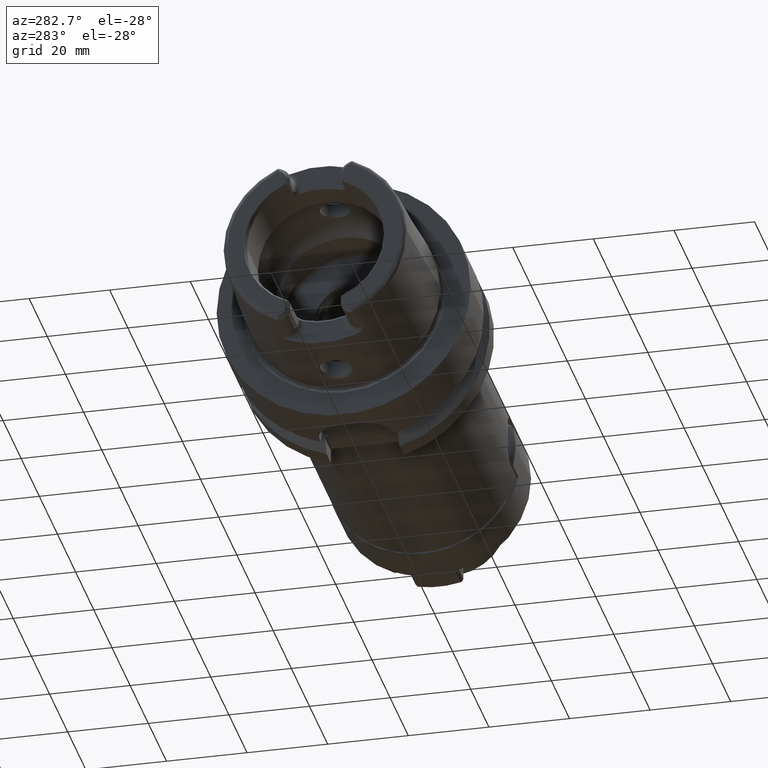
[diagram: clean part render]
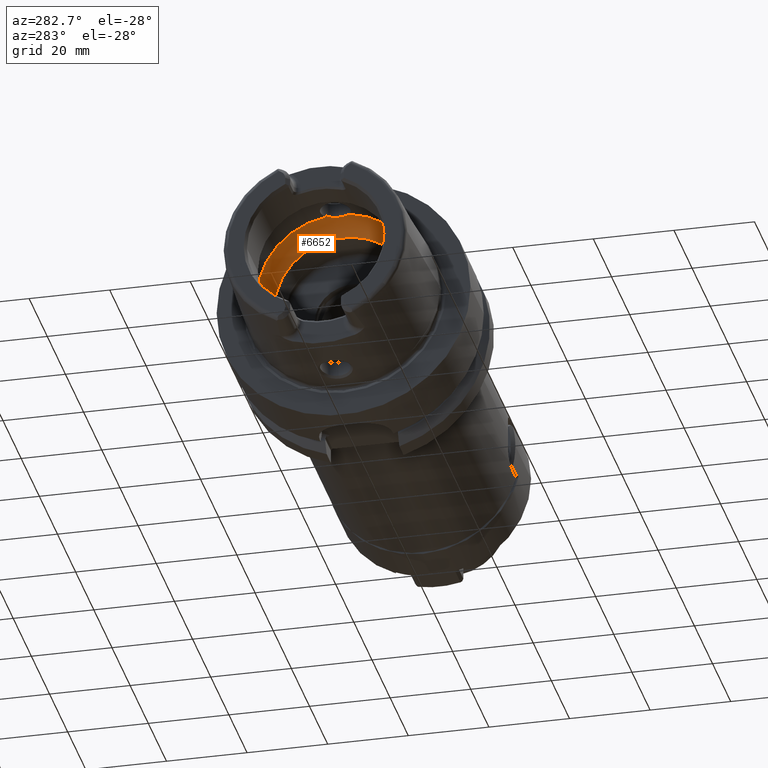
[diagram: same view with one face highlighted and labeled with its STEP entity id]
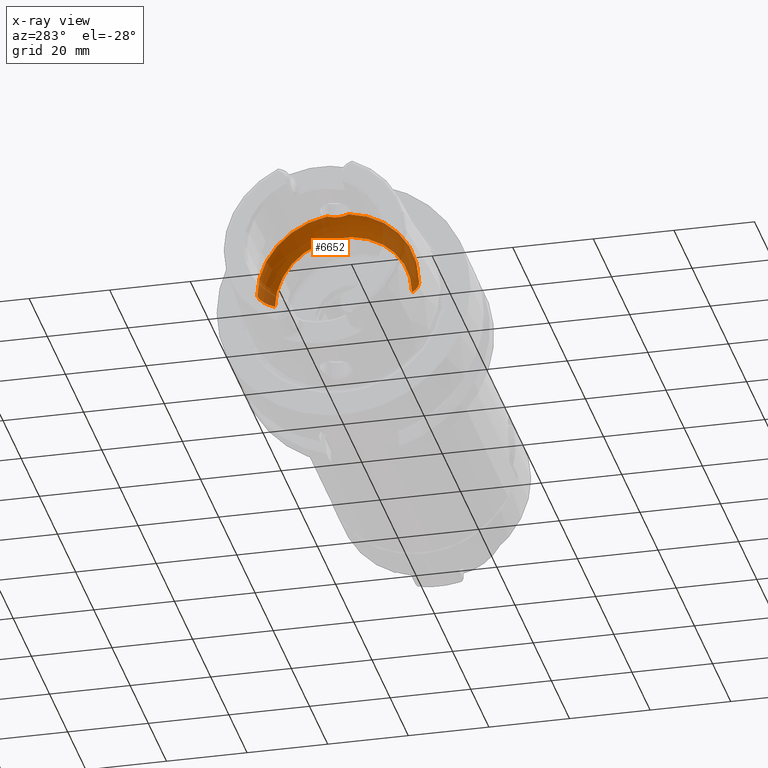
[diagram: x-ray of the same camera — body ghosted, the highlighted face saturated]
A machine part, auxiliary view. The second image highlights one B-rep face of the part: STEP entity #6652.
The next image is the same camera in x-ray: the body ghosted, the highlighted face saturated — about 24% of this face is hidden behind the body in this view.
In plain terms, the highlighted toroidal blend (fillet) surface has major radius 12 mm and minor (blend) radius 8 mm.
Its self-contained STEP definition (entity closure, byte-faithful):
#2603=CARTESIAN_POINT('',(-5.25E0,0.E0,1.992470689575E1));
#2604=CARTESIAN_POINT('',(-5.25E0,1.634249880127E-1,1.992470689575E1));
#2605=CARTESIAN_POINT('',(-5.271317000323E0,4.905125142286E-1,
1.992366860007E1));
#2606=CARTESIAN_POINT('',(-5.367938073203E0,9.753406287590E-1,
1.991846757388E1));
#2607=CARTESIAN_POINT('',(-5.525913254439E0,1.440181253243E0,1.990841194030E1));
#2608=CARTESIAN_POINT('',(-5.745012466850E0,1.883704211740E0,1.989126222791E1));
#2609=CARTESIAN_POINT('',(-6.017092970824E0,2.289932260455E0,1.986481338490E1));
#2610=CARTESIAN_POINT('',(-6.231037578916E0,2.534045566496E0,1.983915065875E1));
#2611=CARTESIAN_POINT('',(-6.344997998398E0,2.648294615690E0,1.982388800484E1));
#2613=CARTESIAN_POINT('',(-6.344997998398E0,-2.648294615690E0,
1.982388800484E1));
#2614=CARTESIAN_POINT('',(-6.231045843136E0,-2.534053851646E0,
1.983914955193E1));
#2615=CARTESIAN_POINT('',(-6.017093742818E0,-2.289943440357E0,
1.986481395775E1));
#2616=CARTESIAN_POINT('',(-5.744901596897E0,-1.883527876206E0,
1.989127237006E1));
#2617=CARTESIAN_POINT('',(-5.525828432433E0,-1.439963272778E0,
1.990841763195E1));
#2618=CARTESIAN_POINT('',(-5.367908372542E0,-9.752317929729E-1,
1.991846926373E1));
#2619=CARTESIAN_POINT('',(-5.271289109403E0,-4.903031116233E-1,
1.992367002777E1));
#2620=CARTESIAN_POINT('',(-5.25E0,-1.633414179458E-1,1.992470689575E1));
#2621=CARTESIAN_POINT('',(-5.25E0,0.E0,1.992470689575E1));
#2623=CARTESIAN_POINT('',(-1.E-1,0.E0,0.E0));
#2624=DIRECTION('',(1.E0,0.E0,0.E0));
#2625=DIRECTION('',(0.E0,1.E0,0.E0));
#2626=AXIS2_PLACEMENT_3D('',#2623,#2624,#2625);
#2648=CARTESIAN_POINT('',(-6.344997998398E0,0.E0,0.E0));
#2649=DIRECTION('',(1.E0,0.E0,0.E0));
#2650=DIRECTION('',(0.E0,1.E0,0.E0));
#2651=AXIS2_PLACEMENT_3D('',#2648,#2649,#2650);
#2653=CARTESIAN_POINT('',(-6.344997998398E0,0.E0,0.E0));
#2654=DIRECTION('',(1.E0,0.E0,0.E0));
#2655=DIRECTION('',(0.E0,-1.324147307845E-1,9.911944002421E-1));
#2656=AXIS2_PLACEMENT_3D('',#2653,#2654,#2655);
#2746=CARTESIAN_POINT('',(-6.344997998398E0,1.2E1,0.E0));
#2747=DIRECTION('',(0.E0,0.E0,1.E0));
#2748=DIRECTION('',(7.806247497998E-1,6.25E-1,0.E0));
#2749=AXIS2_PLACEMENT_3D('',#2746,#2747,#2748);
#2756=CARTESIAN_POINT('',(-6.344997998398E0,-1.2E1,0.E0));
#2757=DIRECTION('',(0.E0,0.E0,-1.E0));
#2758=DIRECTION('',(7.806247497998E-1,-6.25E-1,0.E0));
#2759=AXIS2_PLACEMENT_3D('',#2756,#2757,#2758);
#3025=CARTESIAN_POINT('',(-1.E-1,1.7E1,0.E0));
#3026=VERTEX_POINT('',#3025);
#3027=CARTESIAN_POINT('',(-6.344997998398E0,2.E1,0.E0));
#3028=VERTEX_POINT('',#3027);
#3037=CARTESIAN_POINT('',(-1.E-1,-1.7E1,0.E0));
#3038=VERTEX_POINT('',#3037);
#3039=CARTESIAN_POINT('',(-6.344997998398E0,-2.E1,0.E0));
#3040=VERTEX_POINT('',#3039);
#3208=VERTEX_POINT('',#2603);
#3209=VERTEX_POINT('',#2611);
#3210=VERTEX_POINT('',#2613);
#6633=CARTESIAN_POINT('',(-6.344997998398E0,0.E0,0.E0));
#6634=DIRECTION('',(1.E0,0.E0,0.E0));
#6635=DIRECTION('',(0.E0,-1.E0,0.E0));
#6636=AXIS2_PLACEMENT_3D('',#6633,#6634,#6635);
#6637=TOROIDAL_SURFACE('',#6636,1.2E1,8.E0);
#6638=ORIENTED_EDGE('',*,*,#6610,.F.);
#6639=ORIENTED_EDGE('',*,*,#6376,.F.);
#6641=ORIENTED_EDGE('',*,*,#6640,.T.);
#6643=ORIENTED_EDGE('',*,*,#6642,.F.);
#6645=ORIENTED_EDGE('',*,*,#6644,.F.);
#6647=ORIENTED_EDGE('',*,*,#6646,.T.);
#6649=ORIENTED_EDGE('',*,*,#6648,.T.);
#6650=EDGE_LOOP('',(#6638,#6639,#6641,#6643,#6645,#6647,#6649));
#6651=FACE_OUTER_BOUND('',#6650,.F.);
#6652=ADVANCED_FACE('',(#6651),#6637,.F.);
#2612=B_SPLINE_CURVE_WITH_KNOTS('',3,(#2603,#2604,#2605,#2606,#2607,#2608,#2609,
#2610,#2611),.UNSPECIFIED.,.F.,.F.,(4,1,1,1,1,1,4),(0.E0,1.666666666667E-1,
3.333333333333E-1,5.E-1,6.666666666667E-1,8.333333333333E-1,1.E0),
.UNSPECIFIED.);
#2622=B_SPLINE_CURVE_WITH_KNOTS('',3,(#2613,#2614,#2615,#2616,#2617,#2618,#2619,
#2620,#2621),.UNSPECIFIED.,.F.,.F.,(4,1,1,1,1,1,4),(0.E0,1.666666666667E-1,
3.333333333333E-1,5.E-1,6.666666666667E-1,8.333333333333E-1,1.E0),
.UNSPECIFIED.);
#2627=CIRCLE('',#2626,1.7E1);
#2652=CIRCLE('',#2651,2.E1);
#2657=CIRCLE('',#2656,2.E1);
#2750=CIRCLE('',#2749,8.E0);
#2760=CIRCLE('',#2759,8.E0);
#6376=EDGE_CURVE('',#3210,#3208,#2622,.T.);
#6610=EDGE_CURVE('',#3208,#3209,#2612,.T.);
#6640=EDGE_CURVE('',#3210,#3040,#2657,.T.);
#6642=EDGE_CURVE('',#3038,#3040,#2760,.T.);
#6644=EDGE_CURVE('',#3026,#3038,#2627,.T.);
#6646=EDGE_CURVE('',#3026,#3028,#2750,.T.);
#6648=EDGE_CURVE('',#3028,#3209,#2652,.T.);